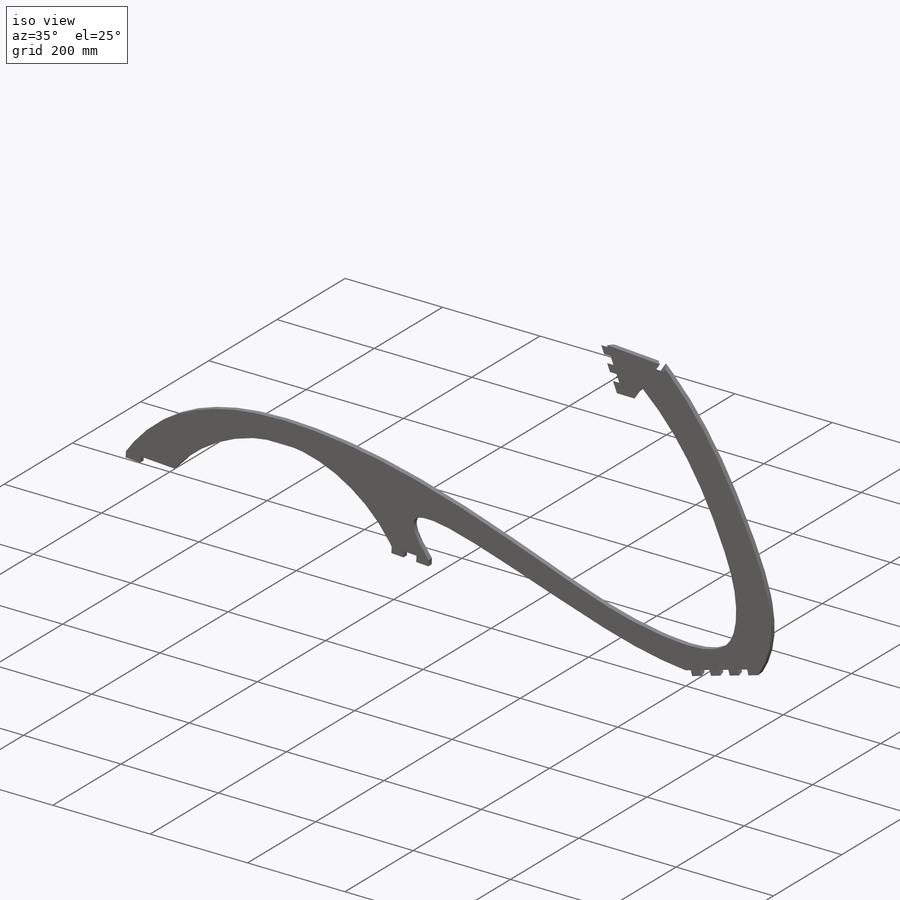
[diagram: iso view]
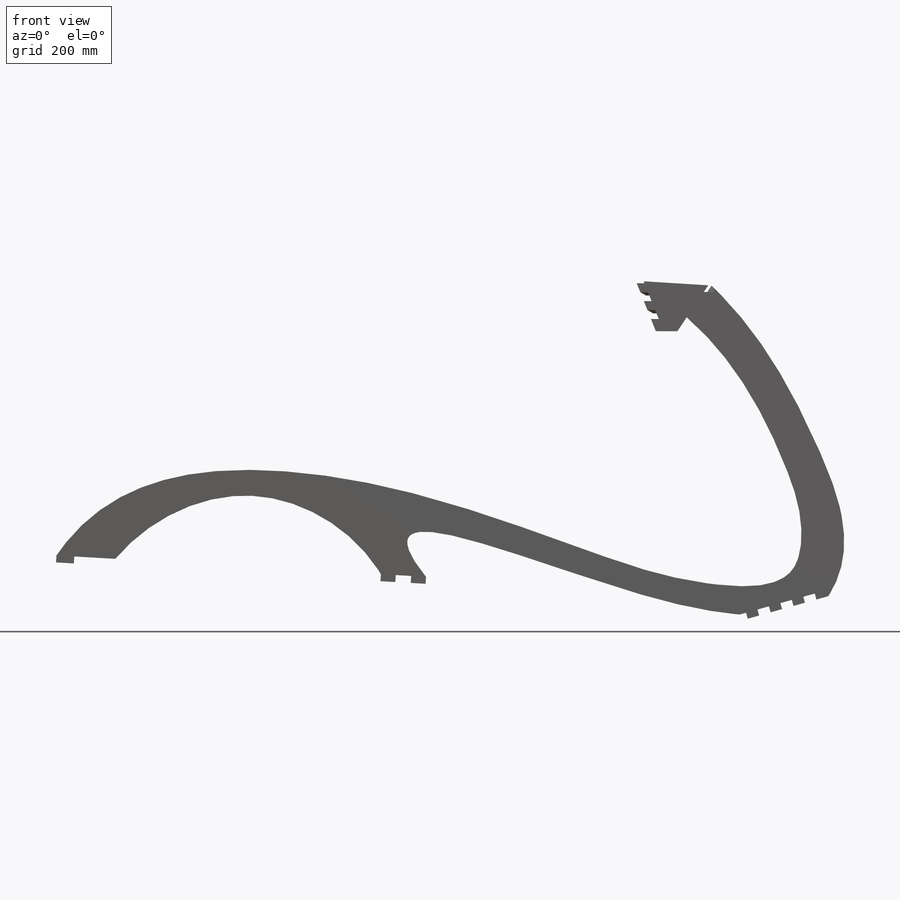
[diagram: front view]
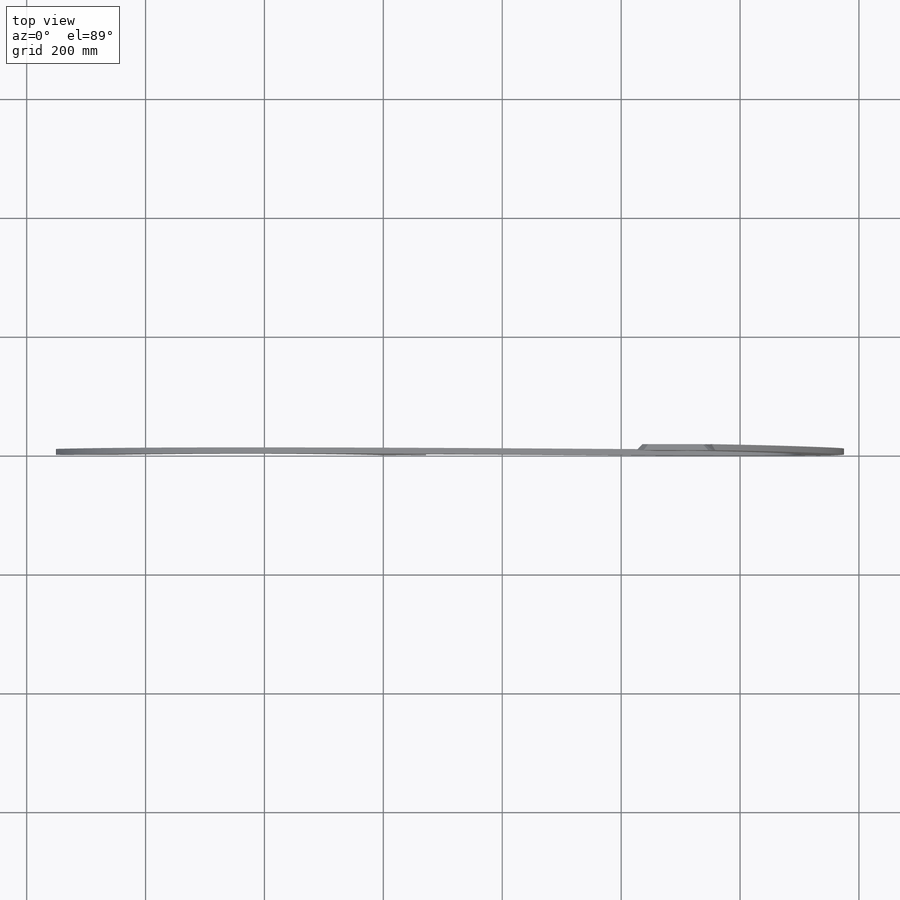
[diagram: top view]
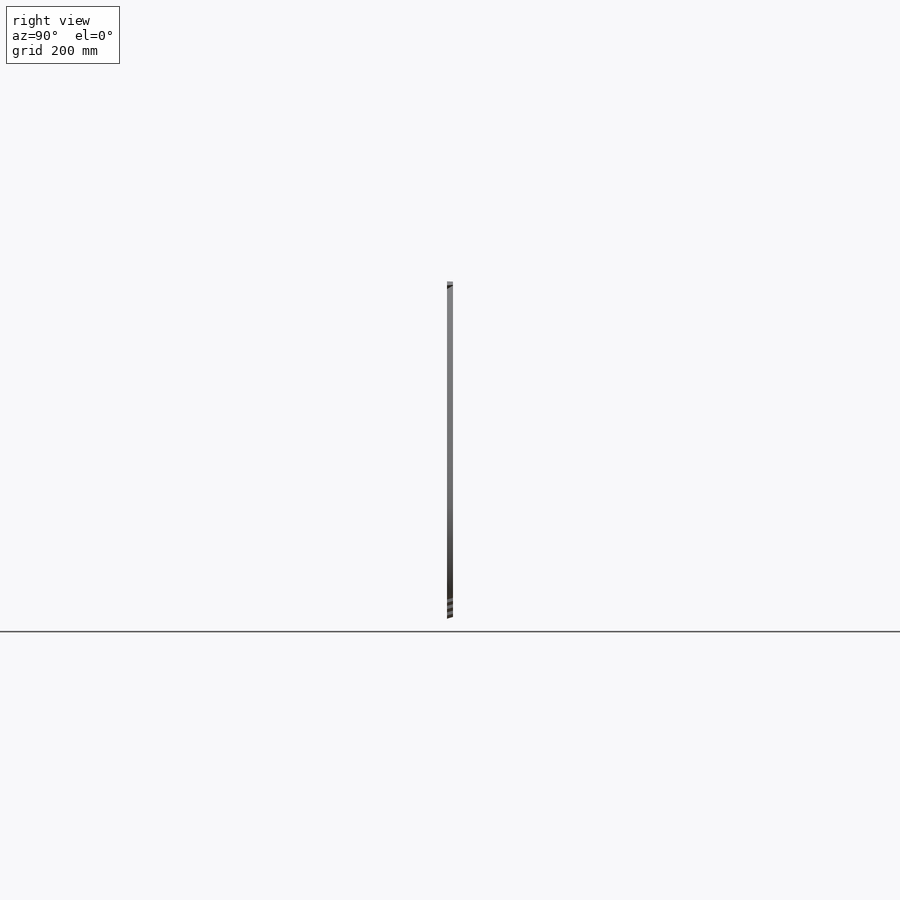
[diagram: right view]
SOLIDWORKS PART (.sldprt)
format: sldprt  version: not decoded by parser v0  size: 1,005,568 bytes
history: native  units: mm
features: sketch x15, cut_extrude x11, extrude x4, plane x2, material x1 + 1 further entry (+11 scaffold rows collapsed)
feature tree (45):
  scaffold x11  (default folders/planes/origin — collapsed)
  material  "Material <not specified>"
  "Axis2"
  sketch  "Sketch1"  dims[c1.D1=~17.608428mm c2.D1=~0.354261deg c3.D1=25.0mm c3.D2=25.0mm c3.D3=25.0mm c3.D4=25.0mm c3.D5=25.0mm c3.D6=25.0mm c4.D5=25.0mm c4.D6=25.0mm c4.D7=25.0mm c4.D1=30.0mm c4.D2=4.0mm]
  extrude  "Boss-Extrude1"  Depth=10mm
  plane  "Plane1"
  sketch  "Sketch3"
  cut_extrude  "Cut-Extrude2"  Depth=10mm
  sketch  "Sketch2"  dims[c1.D1=20.0mm c1.D2=20.0mm c1.D3=20.0mm c1.D4=20.0mm c1.D5=20.0mm c2.D2=20.0mm c2.D4=20.0mm c2.D6=20.0mm c2.D7=20.0mm]
  cut_extrude  "Cut-Extrude1"  Depth=10mm
  plane  "Plane4"
  sketch  "Sketch6"  dims[D1=35.0mm]
  sketch  "Sketch10"  dims[D1=0.1mm]
  cut_extrude  "Cut-Extrude11"  Depth=15mm
  cut_extrude  "Cut-Extrude12"  Depth=95mm
  sketch  "Sketch11"
  extrude  "Boss-Extrude2"  Depth=10mm
  sketch  "Sketch12"
  cut_extrude  "Cut-Extrude13"  Depth=10mm
  sketch  "Sketch13"
  cut_extrude  "Cut-Extrude14"  Depth=30mm
  sketch  "Sketch14"
  cut_extrude  "Cut-Extrude15"  Depth=150mm
  sketch  "Sketch16"
  cut_extrude  "Cut-Extrude18"  Depth=150mm
  sketch  "Sketch17"
  cut_extrude  "Cut-Extrude19"  Depth=150mm
  sketch  "Sketch18"
  cut_extrude  "Cut-Extrude20"  [1 undecoded]
  sketch  "Sketch19"
  cut_extrude  "Cut-Extrude21"  Depth=10mm
  sketch  "Sketch20"  dims[D1=0.0mm]
  extrude  "Boss-Extrude3"  [1 undecoded]
  sketch  "Sketch21"  dims[D1=0.0mm]
  extrude  "Boss-Extrude4"  [1 undecoded]
decode coverage: 18 of 30 modeling features carry decoded parameters; 1 rows unclassified (native names shown)
note: ~ marks probable driven/reference dimensions
note: 3 parameter values undecoded
summary: no parameter record found for 3 features
note: suppression state not decoded; provenance and decode notes live in map.json
